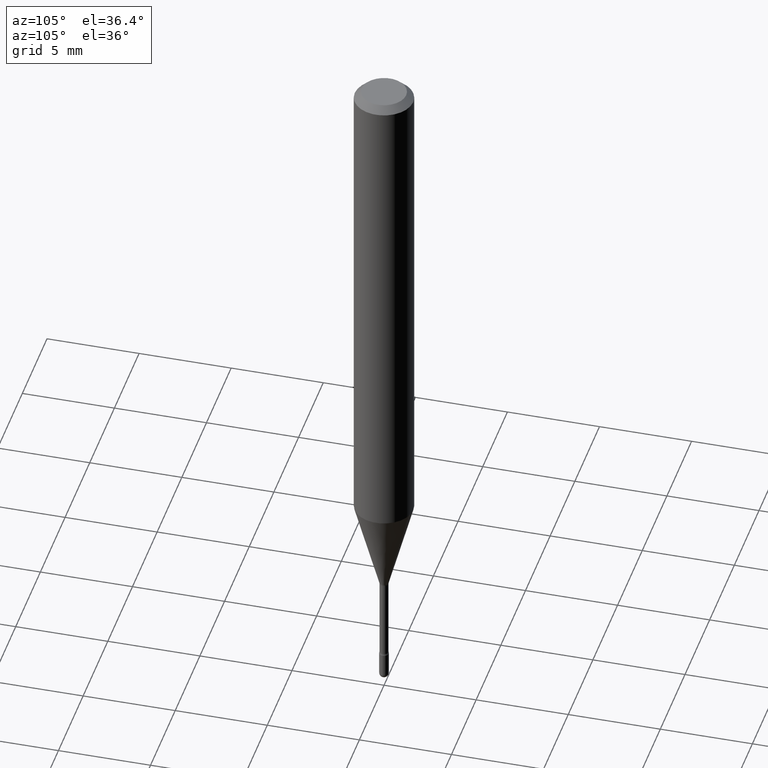
[diagram: clean part render]
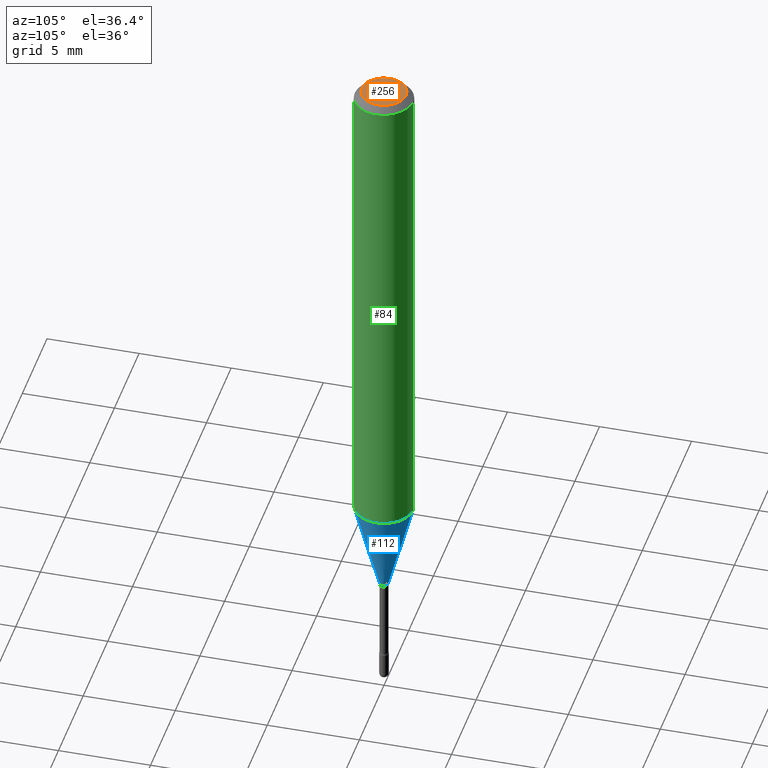
[diagram: same view with three faces highlighted in distinct colors, each labeled with its STEP entity id]
A machine part, auxiliary view with three faces highlighted in distinct colors.
Their STEP definitions:

[orange] entity #256 — the highlighted planar face has unit normal (0, -0, -1).
#24 = ORIENTED_EDGE ( 'NONE', *, *, #196, .T. ) ;
#56 = AXIS2_PLACEMENT_3D ( 'NONE', #464, #371, #518 ) ;
#88 = CARTESIAN_POINT ( 'NONE',  ( 2.022902676298911732E-45, -2.889602922356507576E-31, -8.274094992087870912E-17 ) ) ;
#120 = PLANE ( 'NONE',  #56 ) ;
#141 = CARTESIAN_POINT ( 'NONE',  ( 3.840629472727447874E-16, 0.04749999999999999362, -2.485923956665947867E-16 ) ) ;
#153 = CARTESIAN_POINT ( 'NONE',  ( -3.773273898774340269E-16, -0.04749999999999999362, 8.311049582483736846E-17 ) ) ;
#160 = DIRECTION ( 'NONE',  ( -2.445379392645967337E-29, 3.491609384120338901E-15, 1.000000000000000000 ) ) ;
#191 = VERTEX_POINT ( 'NONE', #153 ) ;
#196 = EDGE_CURVE ( 'NONE', #346, #191, #391, .T. ) ;
#228 = EDGE_LOOP ( 'NONE', ( #24, #416 ) ) ;
#245 = CARTESIAN_POINT ( 'NONE',  ( 2.022902676298911732E-45, -2.889602922356507576E-31, -8.274094992087870912E-17 ) ) ;
#256 = ADVANCED_FACE ( 'NONE', ( #376 ), #120, .F. ) ;
#326 = AXIS2_PLACEMENT_3D ( 'NONE', #245, #160, #450 ) ;
#339 = CIRCLE ( 'NONE', #326, 0.04749999999999999362 ) ;
#343 = DIRECTION ( 'NONE',  ( -6.982962677686266711E-15, -1.000000000000000000, 3.491609384120338507E-15 ) ) ;
#346 = VERTEX_POINT ( 'NONE', #141 ) ;
#371 = DIRECTION ( 'NONE',  ( 2.445379392645966776E-29, -3.491609384120338901E-15, -1.000000000000000000 ) ) ;
#376 = FACE_OUTER_BOUND ( 'NONE', #228, .T. ) ;
#380 = DIRECTION ( 'NONE',  ( -2.445379392645967337E-29, 3.491609384120338901E-15, 1.000000000000000000 ) ) ;
#391 = CIRCLE ( 'NONE', #439, 0.04749999999999999362 ) ;
#416 = ORIENTED_EDGE ( 'NONE', *, *, #564, .T. ) ;
#439 = AXIS2_PLACEMENT_3D ( 'NONE', #88, #380, #343 ) ;
#450 = DIRECTION ( 'NONE',  ( -6.982962677686266711E-15, -1.000000000000000000, 3.491609384120338507E-15 ) ) ;
#464 = CARTESIAN_POINT ( 'NONE',  ( 3.316907271900976096E-16, 0.04749999999999999362, 3.181477873946760564E-17 ) ) ;
#518 = DIRECTION ( 'NONE',  ( 6.982962677686265922E-15, 1.000000000000000000, -3.491609384120338901E-15 ) ) ;
#564 = EDGE_CURVE ( 'NONE', #191, #346, #339, .T. ) ;

[blue] entity #112 — the highlighted conical surface has half-angle 15 deg.
#31 = CARTESIAN_POINT ( 'NONE',  ( 7.042269065257977501E-17, 0.009911112605659591623, -1.258092501787273276 ) ) ;
#45 = DIRECTION ( 'NONE',  ( -2.445379392645967337E-29, 3.491609384120338901E-15, 1.000000000000000000 ) ) ;
#93 = FACE_OUTER_BOUND ( 'NONE', #186, .T. ) ;
#98 = ORIENTED_EDGE ( 'NONE', *, *, #125, .T. ) ;
#112 = ADVANCED_FACE ( 'NONE', ( #93 ), #422, .T. ) ;
#125 = EDGE_CURVE ( 'NONE', #469, #199, #267, .T. ) ;
#129 = CARTESIAN_POINT ( 'NONE',  ( 3.076513477913008046E-29, -4.392767585331877951E-15, -1.258092501787273276 ) ) ;
#146 = VECTOR ( 'NONE', #252, 39.37007874015748854 ) ;
#171 = CARTESIAN_POINT ( 'NONE',  ( -6.920892941966669973E-17, -0.009911112605668376263, -1.258092501787273276 ) ) ;
#186 = EDGE_LOOP ( 'NONE', ( #98, #420, #222, #355 ) ) ;
#199 = VERTEX_POINT ( 'NONE', #524 ) ;
#213 = EDGE_CURVE ( 'NONE', #469, #269, #468, .T. ) ;
#222 = ORIENTED_EDGE ( 'NONE', *, *, #383, .F. ) ;
#232 = CARTESIAN_POINT ( 'NONE',  ( -6.920892941966669973E-17, -0.009911112605668376263, -1.258092501787273276 ) ) ;
#236 = AXIS2_PLACEMENT_3D ( 'NONE', #500, #452, #361 ) ;
#243 = AXIS2_PLACEMENT_3D ( 'NONE', #129, #474, #428 ) ;
#252 = DIRECTION ( 'NONE',  ( -1.807323732225326195E-15, -0.2588190451025176309, 0.9659258262890690894 ) ) ;
#254 = CIRCLE ( 'NONE', #236, 0.06250000000000000000 ) ;
#267 = CIRCLE ( 'NONE', #243, 0.009911112605663983943 ) ;
#269 = VERTEX_POINT ( 'NONE', #557 ) ;
#296 = AXIS2_PLACEMENT_3D ( 'NONE', #513, #45, #528 ) ;
#319 = LINE ( 'NONE', #31, #473 ) ;
#355 = ORIENTED_EDGE ( 'NONE', *, *, #213, .F. ) ;
#361 = DIRECTION ( 'NONE',  ( -6.982962677686265922E-15, -1.000000000000000000, 4.370956789862821150E-15 ) ) ;
#383 = EDGE_CURVE ( 'NONE', #269, #560, #254, .T. ) ;
#420 = ORIENTED_EDGE ( 'NONE', *, *, #540, .T. ) ;
#422 = CONICAL_SURFACE ( 'NONE', #296, 0.009911112605663983943, 0.2617993877991496854 ) ;
#428 = DIRECTION ( 'NONE',  ( -6.982962677686264344E-15, -1.000000000000000000, 0.000000000000000000 ) ) ;
#452 = DIRECTION ( 'NONE',  ( -2.445379392645967337E-29, 3.491609384120338901E-15, 1.000000000000000000 ) ) ;
#468 = LINE ( 'NONE', #171, #146 ) ;
#469 = VERTEX_POINT ( 'NONE', #232 ) ;
#473 = VECTOR ( 'NONE', #542, 39.37007874015748143 ) ;
#474 = DIRECTION ( 'NONE',  ( -2.445379392645967337E-29, 3.491609384120338901E-15, 1.000000000000000000 ) ) ;
#500 = CARTESIAN_POINT ( 'NONE',  ( 2.596572559451962557E-29, -3.707488965678223173E-15, -1.061828102118093087 ) ) ;
#513 = CARTESIAN_POINT ( 'NONE',  ( 3.076513477913008046E-29, -4.392767585331877951E-15, -1.258092501787273276 ) ) ;
#524 = CARTESIAN_POINT ( 'NONE',  ( 2.572559502513342919E-16, 0.009911112605659591623, -1.258092501787273276 ) ) ;
#528 = DIRECTION ( 'NONE',  ( -6.982962677686264344E-15, -1.000000000000000000, 0.000000000000000000 ) ) ;
#540 = EDGE_CURVE ( 'NONE', #199, #560, #319, .T. ) ;
#542 = DIRECTION ( 'NONE',  ( 1.839019923739596371E-15, 0.2588190451025244032, 0.9659258262890673130 ) ) ;
#545 = CARTESIAN_POINT ( 'NONE',  ( 4.440892098500884514E-16, 0.06249999999999629463, -1.061828102118093309 ) ) ;
#557 = CARTESIAN_POINT ( 'NONE',  ( -4.364351673553657356E-16, -0.06250000000000371925, -1.061828102118092865 ) ) ;
#560 = VERTEX_POINT ( 'NONE', #545 ) ;

[green] entity #84 — the highlighted cylindrical surface (edge-blend (fillet) strip) has radius 1.5875 mm, axis along (-0, 0, 1).
#13 = LINE ( 'NONE', #531, #25 ) ;
#25 = VECTOR ( 'NONE', #142, 39.37007874015748143 ) ;
#33 = VECTOR ( 'NONE', #35, 39.37007874015748143 ) ;
#35 = DIRECTION ( 'NONE',  ( -2.445379392645967337E-29, 3.491609384120338901E-15, 1.000000000000000000 ) ) ;
#37 = VERTEX_POINT ( 'NONE', #133 ) ;
#84 = ADVANCED_FACE ( 'NONE', ( #485 ), #223, .T. ) ;
#95 = AXIS2_PLACEMENT_3D ( 'NONE', #396, #229, #495 ) ;
#121 = ORIENTED_EDGE ( 'NONE', *, *, #185, .F. ) ;
#133 = CARTESIAN_POINT ( 'NONE',  ( 4.440892098500887472E-16, 0.06249999999999995837, -0.01500000000000030129 ) ) ;
#139 = VERTEX_POINT ( 'NONE', #431 ) ;
#142 = DIRECTION ( 'NONE',  ( -2.445379392645967337E-29, 3.491609384120338901E-15, 1.000000000000000000 ) ) ;
#185 = EDGE_CURVE ( 'NONE', #139, #37, #325, .T. ) ;
#192 = EDGE_CURVE ( 'NONE', #269, #139, #548, .T. ) ;
#223 = CYLINDRICAL_SURFACE ( 'NONE', #226, 0.06250000000000000000 ) ;
#226 = AXIS2_PLACEMENT_3D ( 'NONE', #384, #482, #266 ) ;
#229 = DIRECTION ( 'NONE',  ( -2.445379392645967337E-29, 3.491609384120338901E-15, 1.000000000000000000 ) ) ;
#236 = AXIS2_PLACEMENT_3D ( 'NONE', #500, #452, #361 ) ;
#254 = CIRCLE ( 'NONE', #236, 0.06250000000000000000 ) ;
#266 = DIRECTION ( 'NONE',  ( -6.982962677686265922E-15, -1.000000000000000000, 3.491609384120340084E-15 ) ) ;
#269 = VERTEX_POINT ( 'NONE', #557 ) ;
#301 = ORIENTED_EDGE ( 'NONE', *, *, #192, .F. ) ;
#321 = EDGE_CURVE ( 'NONE', #560, #37, #13, .T. ) ;
#325 = CIRCLE ( 'NONE', #95, 0.06250000000000000000 ) ;
#361 = DIRECTION ( 'NONE',  ( -6.982962677686265922E-15, -1.000000000000000000, 4.370956789862821150E-15 ) ) ;
#383 = EDGE_CURVE ( 'NONE', #269, #560, #254, .T. ) ;
#384 = CARTESIAN_POINT ( 'NONE',  ( -1.169113584055446105E-44, 1.669184350826100908E-30, 4.780733988912460139E-16 ) ) ;
#394 = ORIENTED_EDGE ( 'NONE', *, *, #383, .T. ) ;
#396 = CARTESIAN_POINT ( 'NONE',  ( 3.668069088968971079E-31, -5.237414076180536874E-17, -0.01500000000000008271 ) ) ;
#397 = EDGE_LOOP ( 'NONE', ( #394, #546, #121, #301 ) ) ;
#415 = CARTESIAN_POINT ( 'NONE',  ( -4.364351673553916201E-16, -0.06250000000000000000, 6.962989853987672938E-16 ) ) ;
#431 = CARTESIAN_POINT ( 'NONE',  ( -4.364351673553912750E-16, -0.06250000000000005551, -0.01499999999999986587 ) ) ;
#452 = DIRECTION ( 'NONE',  ( -2.445379392645967337E-29, 3.491609384120338901E-15, 1.000000000000000000 ) ) ;
#482 = DIRECTION ( 'NONE',  ( -2.445379392645967337E-29, 3.491609384120338901E-15, 1.000000000000000000 ) ) ;
#485 = FACE_OUTER_BOUND ( 'NONE', #397, .T. ) ;
#495 = DIRECTION ( 'NONE',  ( -6.982962677686265922E-15, -1.000000000000000000, 3.483106191921935554E-15 ) ) ;
#500 = CARTESIAN_POINT ( 'NONE',  ( 2.596572559451962557E-29, -3.707488965678223173E-15, -1.061828102118093087 ) ) ;
#531 = CARTESIAN_POINT ( 'NONE',  ( 4.440892098500625669E-16, 0.06250000000000000000, 2.598478123837248819E-16 ) ) ;
#545 = CARTESIAN_POINT ( 'NONE',  ( 4.440892098500884514E-16, 0.06249999999999629463, -1.061828102118093309 ) ) ;
#546 = ORIENTED_EDGE ( 'NONE', *, *, #321, .T. ) ;
#548 = LINE ( 'NONE', #415, #33 ) ;
#557 = CARTESIAN_POINT ( 'NONE',  ( -4.364351673553657356E-16, -0.06250000000000371925, -1.061828102118092865 ) ) ;
#560 = VERTEX_POINT ( 'NONE', #545 ) ;